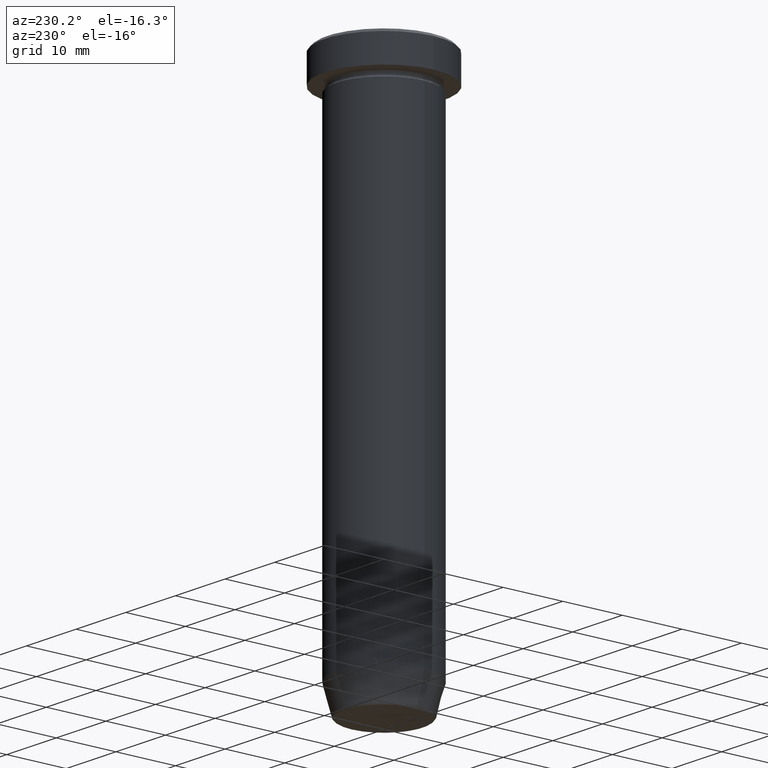
[diagram: clean part render]
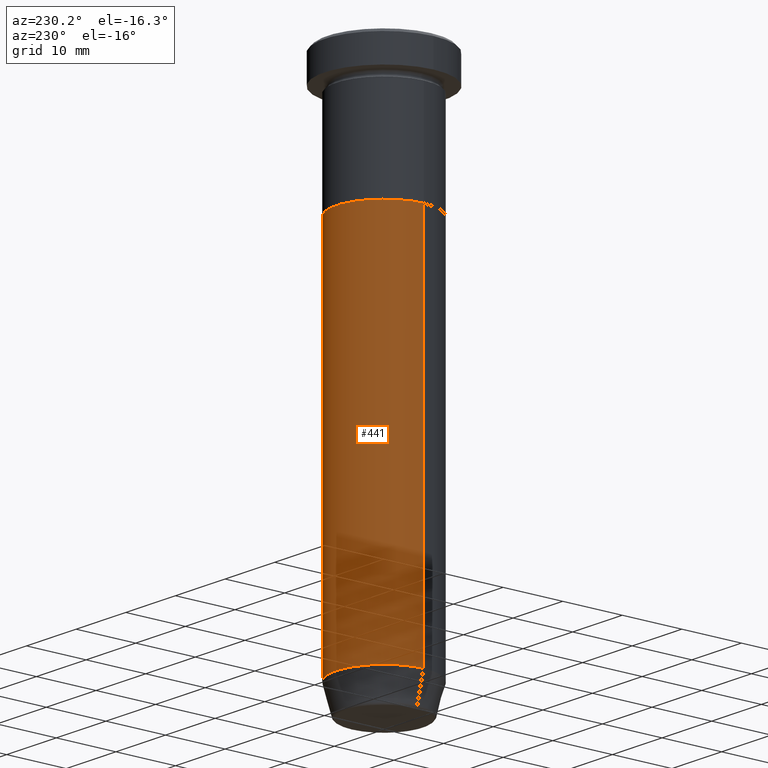
[diagram: same view with one face highlighted and labeled with its STEP entity id]
A machine part, auxiliary view. The second image highlights one B-rep face of the part: STEP entity #441.
In plain terms, the highlighted cylindrical surface (partial cylindrical patch) has radius 8 mm, axis along (-0, -0, 1).
Its self-contained STEP definition (entity closure, byte-faithful):
#2 = ORIENTED_EDGE ( 'NONE', *, *, #20, .T. ) ;
#3 = CIRCLE ( 'NONE', #562, 8.000000000000000000 ) ;
#14 = VECTOR ( 'NONE', #41, 1000.000000000000000 ) ;
#20 = EDGE_CURVE ( 'NONE', #169, #511, #317, .T. ) ;
#38 = CARTESIAN_POINT ( 'NONE',  ( -8.000000000000000000, 9.797174393178825657E-16, 0.000000000000000000 ) ) ;
#41 = DIRECTION ( 'NONE',  ( -0.000000000000000000, -0.000000000000000000, 1.000000000000000000 ) ) ;
#112 = DIRECTION ( 'NONE',  ( 1.000000000000000000, 0.000000000000000000, 0.000000000000000000 ) ) ;
#118 = EDGE_LOOP ( 'NONE', ( #483, #2, #479, #570 ) ) ;
#143 = CARTESIAN_POINT ( 'NONE',  ( -8.000000000000000000, 9.797174393178825657E-16, -84.99999999999998579 ) ) ;
#144 = VERTEX_POINT ( 'NONE', #196 ) ;
#155 = CARTESIAN_POINT ( 'NONE',  ( 0.000000000000000000, 0.000000000000000000, -84.99999999999998579 ) ) ;
#169 = VERTEX_POINT ( 'NONE', #143 ) ;
#196 = CARTESIAN_POINT ( 'NONE',  ( 8.000000000000000000, 0.000000000000000000, -84.99999999999998579 ) ) ;
#201 = DIRECTION ( 'NONE',  ( 1.000000000000000000, 0.000000000000000000, 0.000000000000000000 ) ) ;
#224 = EDGE_CURVE ( 'NONE', #144, #397, #285, .T. ) ;
#246 = DIRECTION ( 'NONE',  ( -0.000000000000000000, -0.000000000000000000, 1.000000000000000000 ) ) ;
#259 = CYLINDRICAL_SURFACE ( 'NONE', #395, 8.000000000000000000 ) ;
#272 = CARTESIAN_POINT ( 'NONE',  ( -8.000000000000000000, 9.797174393178825657E-16, -22.50000000000000000 ) ) ;
#281 = DIRECTION ( 'NONE',  ( -0.000000000000000000, -0.000000000000000000, 1.000000000000000000 ) ) ;
#285 = LINE ( 'NONE', #473, #431 ) ;
#299 = FACE_OUTER_BOUND ( 'NONE', #118, .T. ) ;
#312 = AXIS2_PLACEMENT_3D ( 'NONE', #336, #524, #112 ) ;
#317 = LINE ( 'NONE', #38, #14 ) ;
#336 = CARTESIAN_POINT ( 'NONE',  ( 0.000000000000000000, 0.000000000000000000, -22.50000000000000000 ) ) ;
#359 = EDGE_CURVE ( 'NONE', #144, #169, #3, .T. ) ;
#368 = EDGE_CURVE ( 'NONE', #397, #511, #556, .T. ) ;
#395 = AXIS2_PLACEMENT_3D ( 'NONE', #396, #443, #201 ) ;
#396 = CARTESIAN_POINT ( 'NONE',  ( 0.000000000000000000, 0.000000000000000000, 0.000000000000000000 ) ) ;
#397 = VERTEX_POINT ( 'NONE', #533 ) ;
#431 = VECTOR ( 'NONE', #281, 1000.000000000000000 ) ;
#441 = ADVANCED_FACE ( 'NONE', ( #299 ), #259, .T. ) ;
#443 = DIRECTION ( 'NONE',  ( -0.000000000000000000, -0.000000000000000000, 1.000000000000000000 ) ) ;
#473 = CARTESIAN_POINT ( 'NONE',  ( 8.000000000000000000, 0.000000000000000000, 0.000000000000000000 ) ) ;
#479 = ORIENTED_EDGE ( 'NONE', *, *, #368, .F. ) ;
#482 = DIRECTION ( 'NONE',  ( 1.000000000000000000, 0.000000000000000000, 0.000000000000000000 ) ) ;
#483 = ORIENTED_EDGE ( 'NONE', *, *, #359, .T. ) ;
#511 = VERTEX_POINT ( 'NONE', #272 ) ;
#524 = DIRECTION ( 'NONE',  ( -0.000000000000000000, -0.000000000000000000, 1.000000000000000000 ) ) ;
#533 = CARTESIAN_POINT ( 'NONE',  ( 8.000000000000000000, 0.000000000000000000, -22.50000000000000000 ) ) ;
#556 = CIRCLE ( 'NONE', #312, 8.000000000000000000 ) ;
#562 = AXIS2_PLACEMENT_3D ( 'NONE', #155, #246, #482 ) ;
#570 = ORIENTED_EDGE ( 'NONE', *, *, #224, .F. ) ;